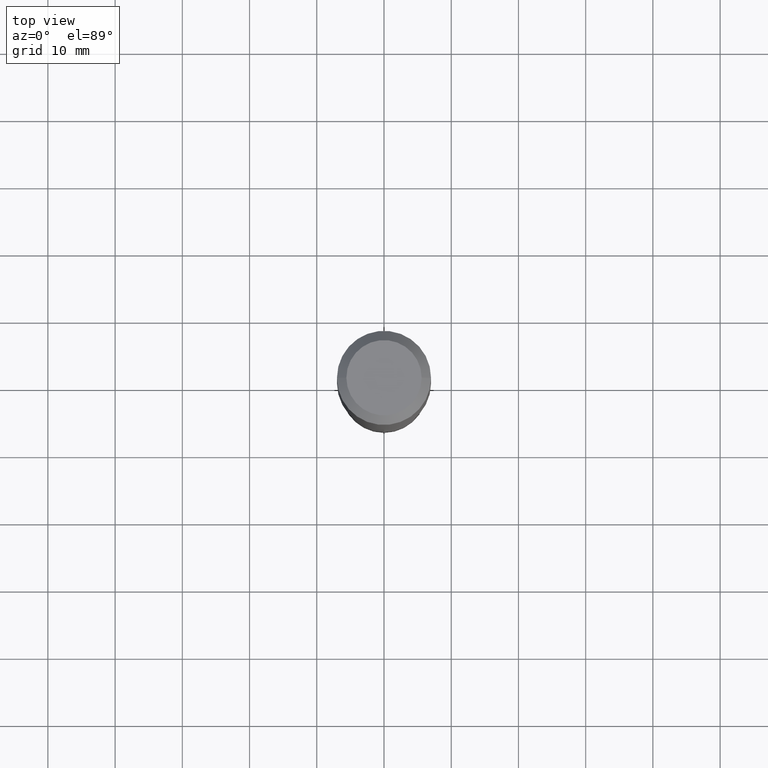
[diagram: clean part render]
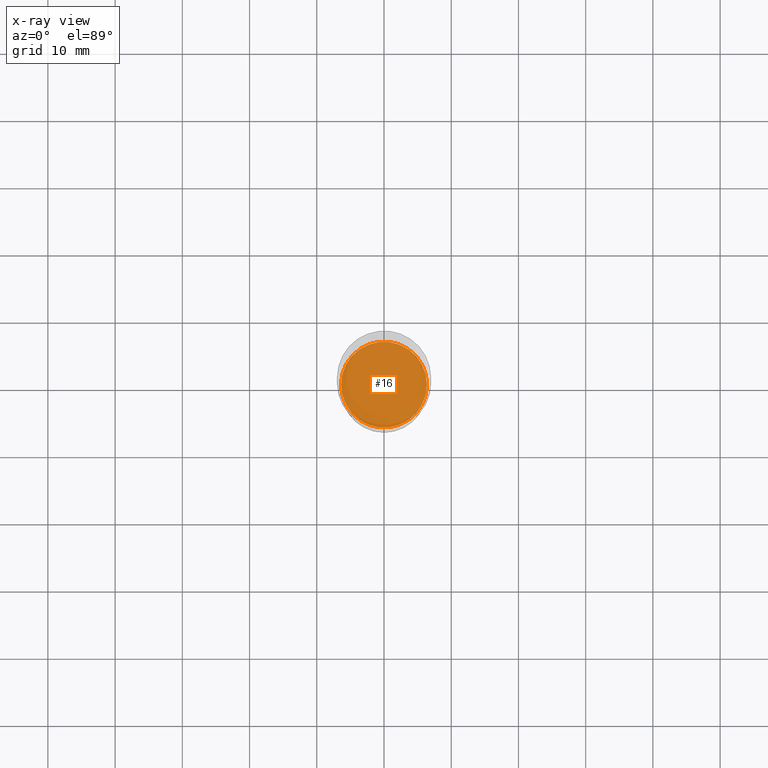
[diagram: x-ray — body ghosted, one internal face saturated and labeled with its STEP entity id]
A machine part, top view, then the same camera in x-ray: the body is ghosted and one INTERNAL B-rep face — a face not visible from any outside direction — is saturated and labeled: STEP entity #16.
In plain terms, the highlighted planar face has unit normal (-0, 0, 1).
Its self-contained STEP definition (entity closure, byte-faithful):
#16 = ADVANCED_FACE ( 'NONE', ( #112 ), #178, .F. ) ;
#62 = VERTEX_POINT ( 'NONE', #174 ) ;
#69 = AXIS2_PLACEMENT_3D ( 'NONE', #263, #403, #84 ) ;
#84 = DIRECTION ( 'NONE',  ( 1.000000000000000000, -6.982962677686265922E-15, 4.876176775795935793E-29 ) ) ;
#90 = CIRCLE ( 'NONE', #203, 0.2514500000000000068 ) ;
#93 = CARTESIAN_POINT ( 'NONE',  ( -0.2514500000000000068, -6.430685579795536309E-15, -2.354300000000000725 ) ) ;
#96 = DIRECTION ( 'NONE',  ( 1.000000000000000000, -6.982962677686263555E-15, 0.000000000000000000 ) ) ;
#112 = FACE_OUTER_BOUND ( 'NONE', #268, .T. ) ;
#123 = CARTESIAN_POINT ( 'NONE',  ( 5.757367210401669319E-29, -8.219994516038420659E-15, -2.354300000000000725 ) ) ;
#133 = DIRECTION ( 'NONE',  ( -2.445468806185136597E-29, 3.491481338843145583E-15, 1.000000000000000000 ) ) ;
#147 = ORIENTED_EDGE ( 'NONE', *, *, #313, .F. ) ;
#173 = CIRCLE ( 'NONE', #484, 0.2514500000000000068 ) ;
#174 = CARTESIAN_POINT ( 'NONE',  ( 0.2514500000000000068, -9.975860481342631268E-15, -2.354300000000000725 ) ) ;
#178 = PLANE ( 'NONE',  #69 ) ;
#199 = EDGE_CURVE ( 'NONE', #391, #62, #90, .T. ) ;
#203 = AXIS2_PLACEMENT_3D ( 'NONE', #123, #415, #454 ) ;
#263 = CARTESIAN_POINT ( 'NONE',  ( 3.971264563627302430E-29, -1.077779516486871561E-14, -2.354300000000000725 ) ) ;
#268 = EDGE_LOOP ( 'NONE', ( #147, #394 ) ) ;
#313 = EDGE_CURVE ( 'NONE', #62, #391, #173, .T. ) ;
#391 = VERTEX_POINT ( 'NONE', #93 ) ;
#394 = ORIENTED_EDGE ( 'NONE', *, *, #199, .F. ) ;
#395 = CARTESIAN_POINT ( 'NONE',  ( 5.757367210401669319E-29, -8.219994516038420659E-15, -2.354300000000000725 ) ) ;
#403 = DIRECTION ( 'NONE',  ( -2.438088387897960049E-29, 3.491481338843145188E-15, 1.000000000000000000 ) ) ;
#415 = DIRECTION ( 'NONE',  ( -2.445468806185136597E-29, 3.491481338843145583E-15, 1.000000000000000000 ) ) ;
#454 = DIRECTION ( 'NONE',  ( 1.000000000000000000, -6.982962677686263555E-15, 0.000000000000000000 ) ) ;
#484 = AXIS2_PLACEMENT_3D ( 'NONE', #395, #133, #96 ) ;